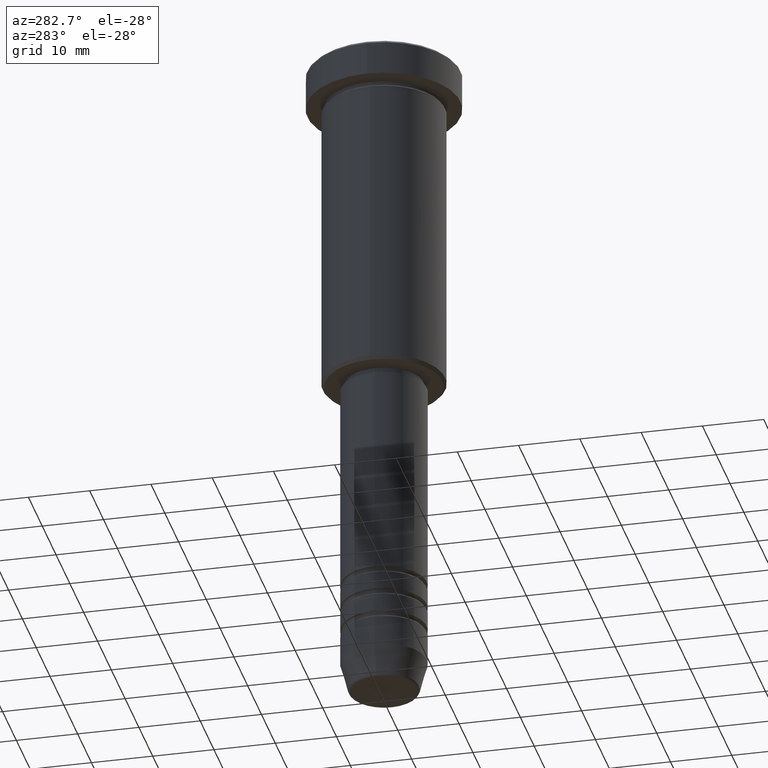
[diagram: clean part render]
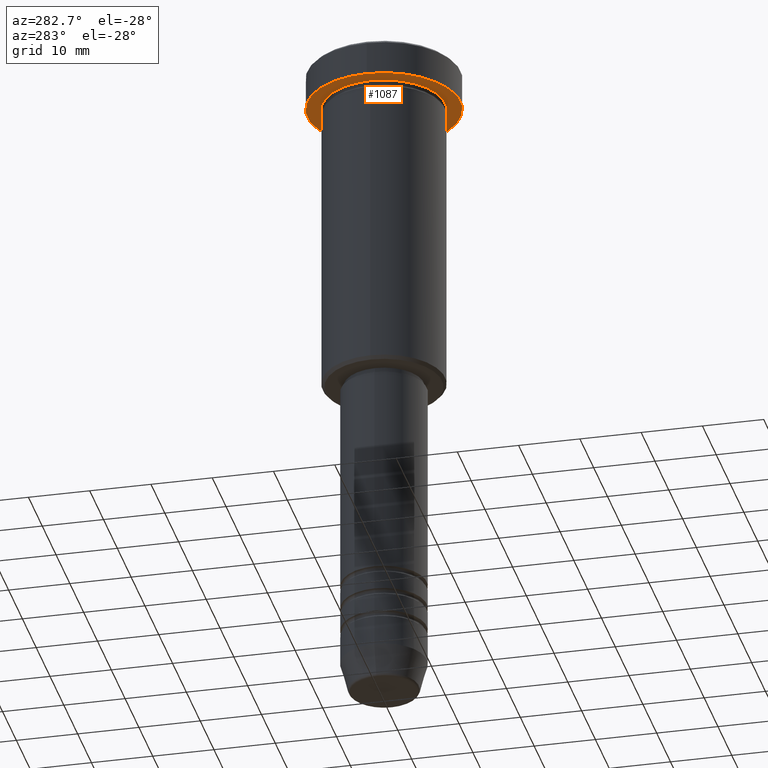
[diagram: same view with one face highlighted and labeled with its STEP entity id]
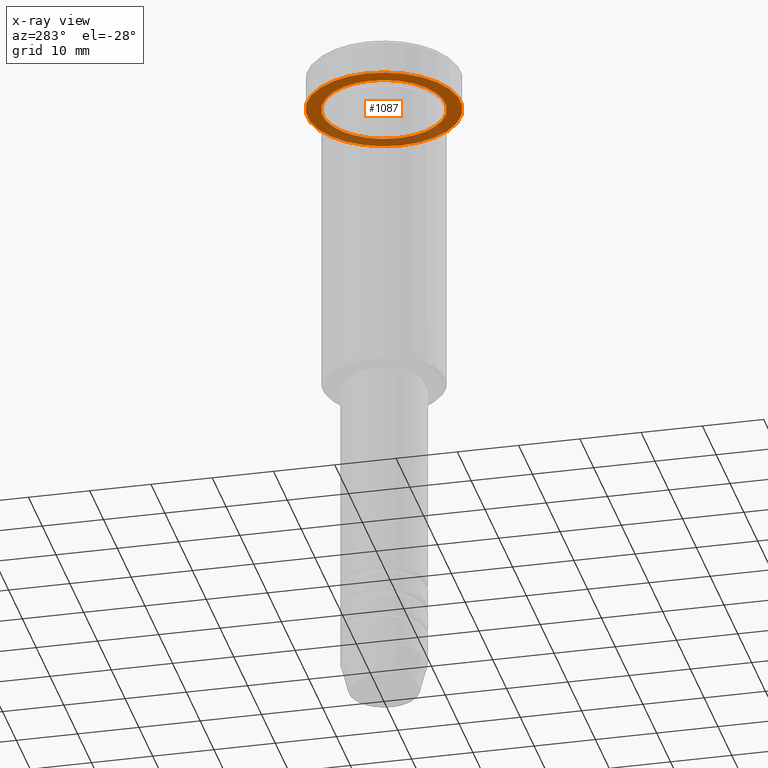
[diagram: x-ray of the same camera — body ghosted, the highlighted face saturated]
A machine part, auxiliary view. The second image highlights one B-rep face of the part: STEP entity #1087.
The next image is the same camera in x-ray: the body ghosted, the highlighted face saturated — about 31% of this face is hidden behind the body in this view.
In plain terms, the highlighted planar face has unit normal (0, 0, -1).
Its self-contained STEP definition (entity closure, byte-faithful):
#36 = DIRECTION ( 'NONE',  ( -0.000000000000000000, -0.000000000000000000, 1.000000000000000000 ) ) ;
#41 = VERTEX_POINT ( 'NONE', #177 ) ;
#79 = ORIENTED_EDGE ( 'NONE', *, *, #469, .T. ) ;
#103 = CIRCLE ( 'NONE', #1160, 12.50000000000000000 ) ;
#141 = EDGE_CURVE ( 'NONE', #1029, #486, #103, .T. ) ;
#143 = CARTESIAN_POINT ( 'NONE',  ( 0.000000000000000000, 0.000000000000000000, -5.999999999999996447 ) ) ;
#145 = AXIS2_PLACEMENT_3D ( 'NONE', #1112, #36, #405 ) ;
#169 = EDGE_LOOP ( 'NONE', ( #623, #887 ) ) ;
#177 = CARTESIAN_POINT ( 'NONE',  ( 10.00000000000000000, 1.224646799147353256E-15, -5.999999999999996447 ) ) ;
#195 = CARTESIAN_POINT ( 'NONE',  ( 0.000000000000000000, 0.000000000000000000, -5.999999999999996447 ) ) ;
#215 = CARTESIAN_POINT ( 'NONE',  ( 0.000000000000000000, 0.000000000000000000, -5.999999999999996447 ) ) ;
#315 = PLANE ( 'NONE',  #376 ) ;
#331 = CARTESIAN_POINT ( 'NONE',  ( 0.000000000000000000, 12.50000000000000000, -5.999999999999996447 ) ) ;
#376 = AXIS2_PLACEMENT_3D ( 'NONE', #331, #1144, #790 ) ;
#397 = CIRCLE ( 'NONE', #689, 10.00000000000000000 ) ;
#405 = DIRECTION ( 'NONE',  ( -1.000000000000000000, 0.000000000000000000, 0.000000000000000000 ) ) ;
#420 = CIRCLE ( 'NONE', #145, 10.00000000000000000 ) ;
#441 = CIRCLE ( 'NONE', #612, 12.50000000000000000 ) ;
#464 = EDGE_CURVE ( 'NONE', #486, #1029, #441, .T. ) ;
#469 = EDGE_CURVE ( 'NONE', #41, #795, #397, .T. ) ;
#486 = VERTEX_POINT ( 'NONE', #1022 ) ;
#487 = FACE_BOUND ( 'NONE', #769, .T. ) ;
#570 = DIRECTION ( 'NONE',  ( -0.000000000000000000, -0.000000000000000000, 1.000000000000000000 ) ) ;
#612 = AXIS2_PLACEMENT_3D ( 'NONE', #215, #940, #749 ) ;
#623 = ORIENTED_EDGE ( 'NONE', *, *, #464, .F. ) ;
#689 = AXIS2_PLACEMENT_3D ( 'NONE', #195, #570, #1126 ) ;
#749 = DIRECTION ( 'NONE',  ( 1.000000000000000000, 0.000000000000000000, 0.000000000000000000 ) ) ;
#769 = EDGE_LOOP ( 'NONE', ( #892, #79 ) ) ;
#790 = DIRECTION ( 'NONE',  ( -1.000000000000000000, 0.000000000000000000, -0.000000000000000000 ) ) ;
#793 = CARTESIAN_POINT ( 'NONE',  ( -10.00000000000000000, 0.000000000000000000, -5.999999999999996447 ) ) ;
#795 = VERTEX_POINT ( 'NONE', #793 ) ;
#853 = FACE_OUTER_BOUND ( 'NONE', #169, .T. ) ;
#887 = ORIENTED_EDGE ( 'NONE', *, *, #141, .F. ) ;
#892 = ORIENTED_EDGE ( 'NONE', *, *, #959, .T. ) ;
#940 = DIRECTION ( 'NONE',  ( -0.000000000000000000, -0.000000000000000000, 1.000000000000000000 ) ) ;
#957 = DIRECTION ( 'NONE',  ( -0.000000000000000000, -0.000000000000000000, 1.000000000000000000 ) ) ;
#959 = EDGE_CURVE ( 'NONE', #795, #41, #420, .T. ) ;
#962 = DIRECTION ( 'NONE',  ( 1.000000000000000000, 0.000000000000000000, 0.000000000000000000 ) ) ;
#1022 = CARTESIAN_POINT ( 'NONE',  ( 12.50000000000000000, 0.000000000000000000, -5.999999999999996447 ) ) ;
#1024 = CARTESIAN_POINT ( 'NONE',  ( -12.50000000000000000, 1.530808498934191521E-15, -5.999999999999996447 ) ) ;
#1029 = VERTEX_POINT ( 'NONE', #1024 ) ;
#1087 = ADVANCED_FACE ( 'NONE', ( #487, #853 ), #315, .T. ) ;
#1112 = CARTESIAN_POINT ( 'NONE',  ( 0.000000000000000000, 0.000000000000000000, -5.999999999999996447 ) ) ;
#1126 = DIRECTION ( 'NONE',  ( -1.000000000000000000, 0.000000000000000000, 0.000000000000000000 ) ) ;
#1144 = DIRECTION ( 'NONE',  ( 0.000000000000000000, 0.000000000000000000, -1.000000000000000000 ) ) ;
#1160 = AXIS2_PLACEMENT_3D ( 'NONE', #143, #957, #962 ) ;